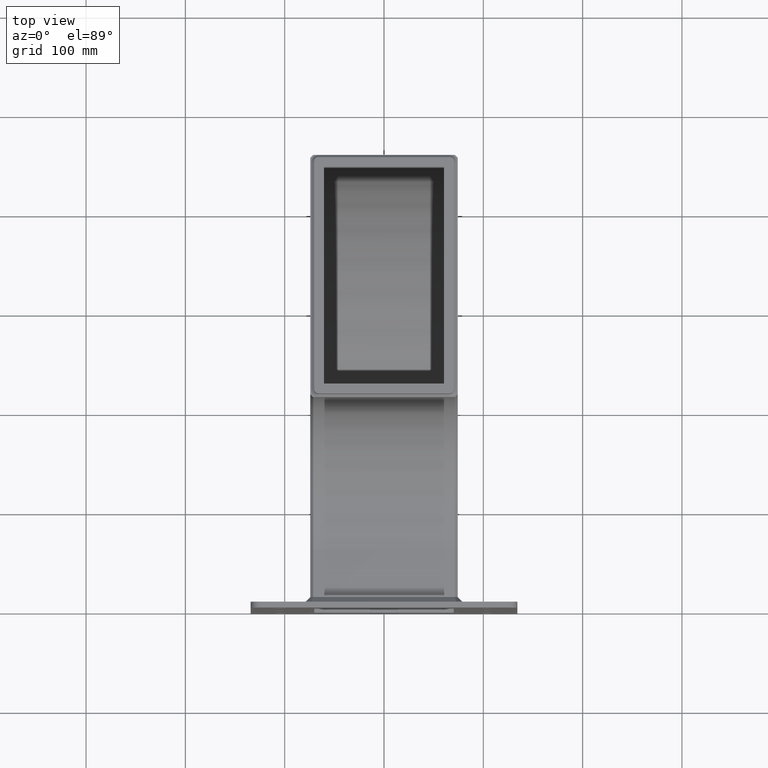
[diagram: clean part render]
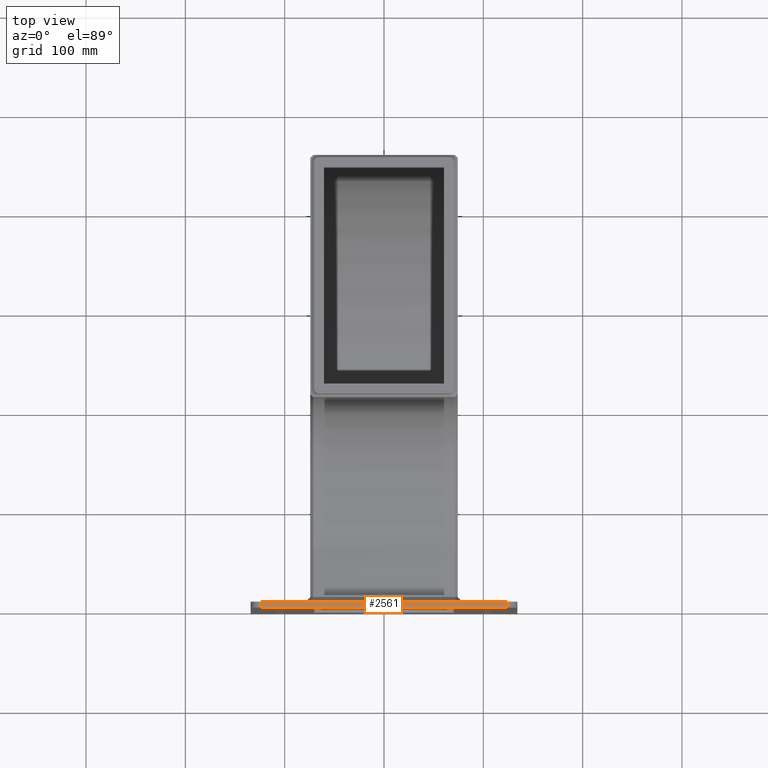
[diagram: same view with one face highlighted and labeled with its STEP entity id]
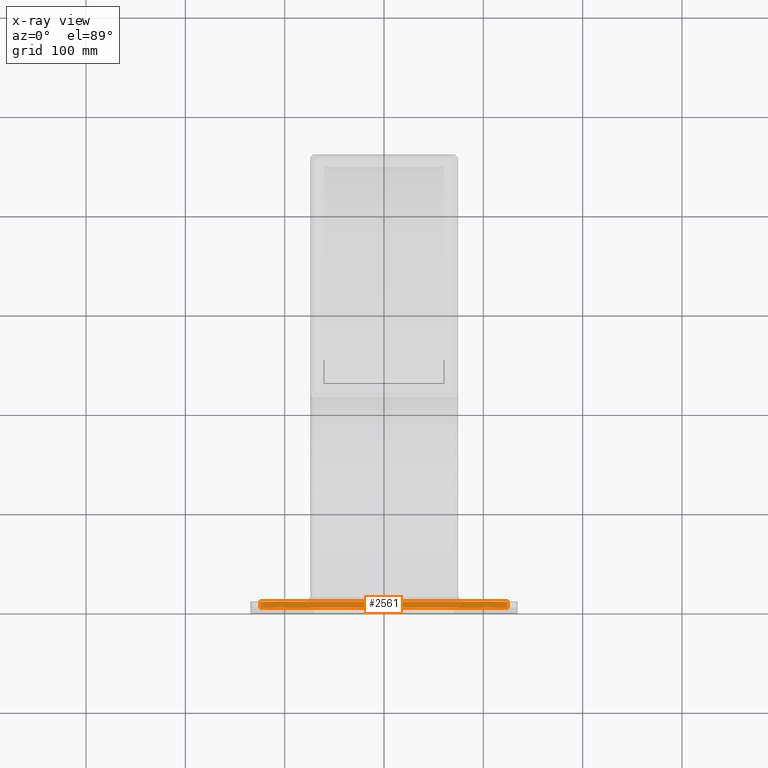
[diagram: x-ray of the same camera — body ghosted, the highlighted face saturated]
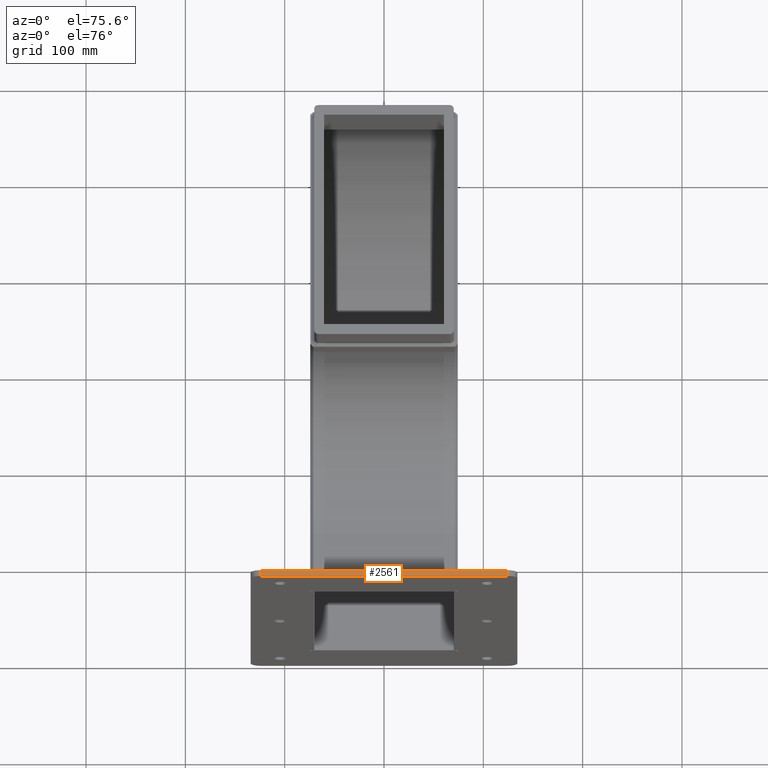
[diagram: same view with one face highlighted and labeled with its STEP entity id]
A machine part, top view. The second image highlights one B-rep face of the part: STEP entity #2561.
The next image is the same camera in x-ray: the body ghosted, the highlighted face saturated — about 0% of this face is hidden behind the body in this view.
A second angle (auxiliary view) of the same face is appended — the face is thin or edge-on in the first view.
In plain terms, the highlighted planar face has unit normal (0, 0, 1).
Its self-contained STEP definition (entity closure, byte-faithful):
#199=FACE_OUTER_BOUND('',#358,.T.);
#358=EDGE_LOOP('',(#2055,#2056,#2057,#2058));
#670=LINE('',#4136,#956);
#675=LINE('',#4160,#961);
#676=LINE('',#4164,#962);
#677=LINE('',#4165,#963);
#956=VECTOR('',#3383,10.);
#961=VECTOR('',#3404,10.);
#962=VECTOR('',#3409,10.);
#963=VECTOR('',#3410,10.);
#1192=VERTEX_POINT('',#4133);
#1193=VERTEX_POINT('',#4135);
#1204=VERTEX_POINT('',#4159);
#1205=VERTEX_POINT('',#4163);
#1490=EDGE_CURVE('',#1192,#1193,#670,.T.);
#1502=EDGE_CURVE('',#1193,#1204,#675,.T.);
#1504=EDGE_CURVE('',#1205,#1192,#676,.T.);
#1505=EDGE_CURVE('',#1205,#1204,#677,.T.);
#2055=ORIENTED_EDGE('',*,*,#1502,.F.);
#2056=ORIENTED_EDGE('',*,*,#1490,.F.);
#2057=ORIENTED_EDGE('',*,*,#1504,.F.);
#2058=ORIENTED_EDGE('',*,*,#1505,.T.);
#2429=PLANE('',#2873);
#2561=ADVANCED_FACE('',(#199),#2429,.T.);
#2873=AXIS2_PLACEMENT_3D('',#4162,#3407,#3408);
#3383=DIRECTION('',(0.,0.,-1.));
#3404=DIRECTION('',(0.,-1.,0.));
#3407=DIRECTION('center_axis',(1.,0.,0.));
#3408=DIRECTION('ref_axis',(0.,0.,-1.));
#3409=DIRECTION('',(0.,1.,0.));
#3410=DIRECTION('',(0.,0.,-1.));
#4133=CARTESIAN_POINT('',(182.,6.,124.25));
#4135=CARTESIAN_POINT('',(182.,6.,-124.25));
#4136=CARTESIAN_POINT('',(182.,6.,134.25));
#4159=CARTESIAN_POINT('',(182.,0.,-124.25));
#4160=CARTESIAN_POINT('',(182.,0.,-124.25));
#4162=CARTESIAN_POINT('Origin',(182.,0.,134.25));
#4163=CARTESIAN_POINT('',(182.,0.,124.25));
#4164=CARTESIAN_POINT('',(182.,0.,124.25));
#4165=CARTESIAN_POINT('',(182.,0.,134.25));